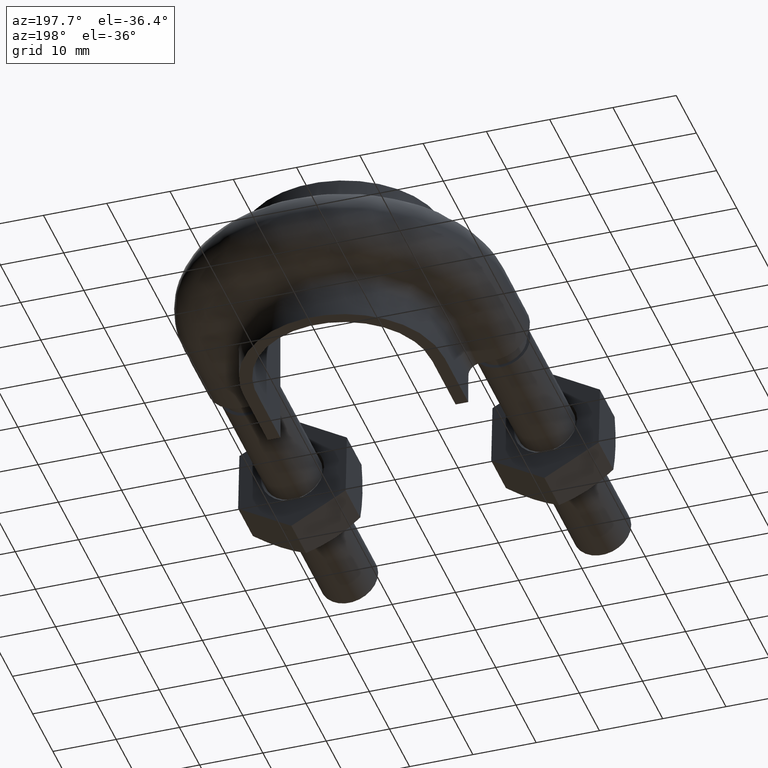
[diagram: clean part render]
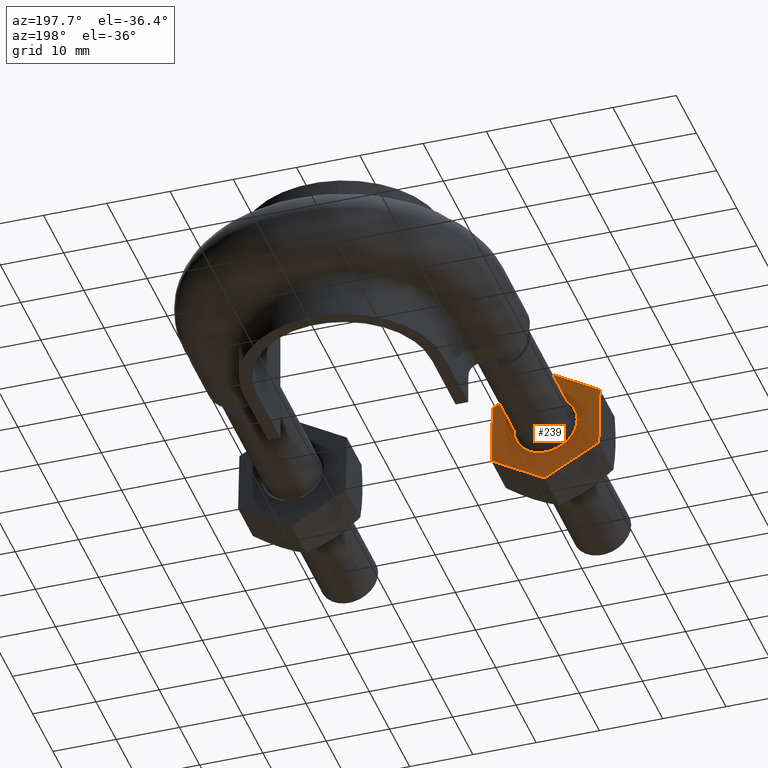
[diagram: same view with one face highlighted and labeled with its STEP entity id]
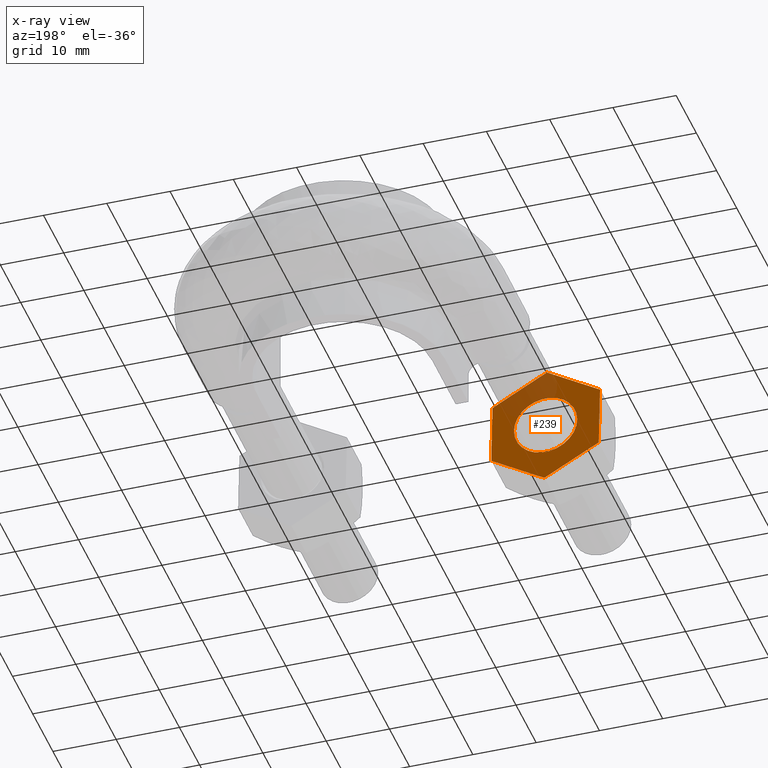
[diagram: x-ray of the same camera — body ghosted, the highlighted face saturated]
A machine part, auxiliary view. The second image highlights one B-rep face of the part: STEP entity #239.
The next image is the same camera in x-ray: the body ghosted, the highlighted face saturated — about 20% of this face is hidden behind the body in this view.
In plain terms, the highlighted planar face has unit normal (-0, -1, -0).
Its self-contained STEP definition (entity closure, byte-faithful):
#239 = ADVANCED_FACE( '', ( #329, #330 ), #331, .F. );
#329 = FACE_OUTER_BOUND( '', #1187, .T. );
#330 = FACE_BOUND( '', #1188, .T. );
#331 = PLANE( '', #1189 );
#1187 = EDGE_LOOP( '', ( #1423, #1424, #1425, #1426, #1427, #1428, #1429, #1430, #1431, #1432, #1433, #1434 ) );
#1188 = EDGE_LOOP( '', ( #1435 ) );
#1189 = AXIS2_PLACEMENT_3D( '', #1436, #1437, #1438 );
#1423 = ORIENTED_EDGE( '', *, *, #1771, .T. );
#1424 = ORIENTED_EDGE( '', *, *, #1772, .T. );
#1425 = ORIENTED_EDGE( '', *, *, #1773, .T. );
#1426 = ORIENTED_EDGE( '', *, *, #1774, .T. );
#1427 = ORIENTED_EDGE( '', *, *, #1775, .T. );
#1428 = ORIENTED_EDGE( '', *, *, #1765, .T. );
#1429 = ORIENTED_EDGE( '', *, *, #1761, .T. );
#1430 = ORIENTED_EDGE( '', *, *, #1776, .T. );
#1431 = ORIENTED_EDGE( '', *, *, #1777, .T. );
#1432 = ORIENTED_EDGE( '', *, *, #1778, .T. );
#1433 = ORIENTED_EDGE( '', *, *, #1779, .T. );
#1434 = ORIENTED_EDGE( '', *, *, #1780, .T. );
#1435 = ORIENTED_EDGE( '', *, *, #1769, .F. );
#1436 = CARTESIAN_POINT( '', ( -20.1994470847724, 28.0000000000024, 9.79797024186009 ) );
#1437 = DIRECTION( '', ( -4.89842541528951E-016, -1.00000000000000, -6.12303176911189E-017 ) );
#1438 = DIRECTION( '', ( -1.00000000000000, 4.89842541528951E-016, 6.03777548009827E-048 ) );
#1761 = EDGE_CURVE( '', #1908, #1906, #1909, .F. );
#1765 = EDGE_CURVE( '', #1915, #1908, #1916, .T. );
#1769 = EDGE_CURVE( '', #1921, #1921, #1922, .F. );
#1771 = EDGE_CURVE( '', #1925, #1926, #1927, .F. );
#1772 = EDGE_CURVE( '', #1926, #1928, #1929, .T. );
#1773 = EDGE_CURVE( '', #1928, #1930, #1931, .F. );
#1774 = EDGE_CURVE( '', #1930, #1932, #1933, .T. );
#1775 = EDGE_CURVE( '', #1932, #1915, #1934, .F. );
#1776 = EDGE_CURVE( '', #1906, #1935, #1936, .T. );
#1777 = EDGE_CURVE( '', #1935, #1937, #1938, .F. );
#1778 = EDGE_CURVE( '', #1937, #1939, #1940, .T. );
#1779 = EDGE_CURVE( '', #1939, #1941, #1942, .F. );
#1780 = EDGE_CURVE( '', #1941, #1925, #1943, .T. );
#1906 = VERTEX_POINT( '', #2294 );
#1908 = VERTEX_POINT( '', #2297 );
#1909 = CIRCLE( '', #2298, 9.80000000000000 );
#1915 = VERTEX_POINT( '', #2315 );
#1916 = LINE( '', #2316, #2317 );
#1921 = VERTEX_POINT( '', #2328 );
#1922 = CIRCLE( '', #2329, 5.00000000000000 );
#1925 = VERTEX_POINT( '', #2332 );
#1926 = VERTEX_POINT( '', #2333 );
#1927 = CIRCLE( '', #2334, 9.80000000000000 );
#1928 = VERTEX_POINT( '', #2335 );
#1929 = LINE( '', #2336, #2337 );
#1930 = VERTEX_POINT( '', #2338 );
#1931 = CIRCLE( '', #2339, 9.80000000000000 );
#1932 = VERTEX_POINT( '', #2340 );
#1933 = LINE( '', #2341, #2342 );
#1934 = CIRCLE( '', #2343, 9.80000000000000 );
#1935 = VERTEX_POINT( '', #2344 );
#1936 = LINE( '', #2345, #2346 );
#1937 = VERTEX_POINT( '', #2347 );
#1938 = CIRCLE( '', #2348, 9.80000000000000 );
#1939 = VERTEX_POINT( '', #2349 );
#1940 = LINE( '', #2350, #2351 );
#1941 = VERTEX_POINT( '', #2352 );
#1942 = CIRCLE( '', #2353, 9.80000000000000 );
#1943 = LINE( '', #2354, #2355 );
#2294 = CARTESIAN_POINT( '', ( -28.3989738803692, 28.0000000000024, -5.04947895894971 ) );
#2297 = CARTESIAN_POINT( '', ( -28.3721024549274, 28.0000000000024, -5.09390817390725 ) );
#2298 = AXIS2_PLACEMENT_3D( '', #2629, #2630, #2631 );
#2315 = CARTESIAN_POINT( '', ( -19.8265098858592, 28.0000000000024, -9.79846422559655 ) );
#2316 = CARTESIAN_POINT( '', ( -28.3918135090738, 28.0000000000024, -5.08305676034871 ) );
#2317 = VECTOR( '', #2633, 1000.00000000000 );
#2328 = CARTESIAN_POINT( '', ( -15.0000000000000, 28.0000000000024, 5.01541082970070E-015 ) );
#2329 = AXIS2_PLACEMENT_3D( '', #2638, #2639, #2640 );
#2332 = CARTESIAN_POINT( '', ( -11.6278975450726, 28.0000000000024, 5.09390817390726 ) );
#2333 = CARTESIAN_POINT( '', ( -11.6010261196308, 28.0000000000024, 5.04947895894972 ) );
#2334 = AXIS2_PLACEMENT_3D( '', #2644, #2645, #2646 );
#2335 = CARTESIAN_POINT( '', ( -11.4024948893875, 28.0000000000024, -4.70349932209962 ) );
#2336 = CARTESIAN_POINT( '', ( -11.7012075892815, 28.0000000000024, 9.97096006028513 ) );
#2337 = VECTOR( '', #2647, 1000.00000000000 );
#2338 = CARTESIAN_POINT( '', ( -11.4275360054900, 28.0000000000024, -4.74898526664692 ) );
#2339 = AXIS2_PLACEMENT_3D( '', #2648, #2649, #2650 );
#2340 = CARTESIAN_POINT( '', ( -19.7745973443148, 28.0000000000024, -9.79740749600679 ) );
#2341 = CARTESIAN_POINT( '', ( -11.4082828786081, 28.0000000000024, -4.73734069980000 ) );
#2342 = VECTOR( '', #2651, 1000.00000000000 );
#2343 = AXIS2_PLACEMENT_3D( '', #2652, #2653, #2654 );
#2344 = CARTESIAN_POINT( '', ( -28.5975051106125, 28.0000000000024, 4.70349932209962 ) );
#2345 = CARTESIAN_POINT( '', ( -28.6976865802633, 28.0000000000024, 9.62498042343504 ) );
#2346 = VECTOR( '', #2655, 1000.00000000000 );
#2347 = CARTESIAN_POINT( '', ( -28.5724639945100, 28.0000000000024, 4.74898526664693 ) );
#2348 = AXIS2_PLACEMENT_3D( '', #2656, #2657, #2658 );
#2349 = CARTESIAN_POINT( '', ( -20.2254026556852, 28.0000000000024, 9.79740749600680 ) );
#2350 = CARTESIAN_POINT( '', ( -20.2061495288033, 28.0000000000024, 9.80905206285371 ) );
#2351 = VECTOR( '', #2659, 1000.00000000000 );
#2352 = CARTESIAN_POINT( '', ( -20.1734901141408, 28.0000000000024, 9.79846422559656 ) );
#2353 = AXIS2_PLACEMENT_3D( '', #2660, #2661, #2662 );
#2354 = CARTESIAN_POINT( '', ( -20.1932011682872, 28.0000000000024, 9.80931563915510 ) );
#2355 = VECTOR( '', #2663, 1000.00000000000 );
#2629 = CARTESIAN_POINT( '', ( -20.0000000000000, 28.0000000000024, 5.01541082970070E-015 ) );
#2630 = DIRECTION( '', ( -4.89842541528951E-016, -1.00000000000000, -6.12303176911189E-017 ) );
#2631 = DIRECTION( '', ( 1.00000000000000, -4.89842541528951E-016, 0.000000000000000 ) );
#2633 = DIRECTION( '', ( -0.876021905853163, 3.99583171018579E-016, 0.482271314163917 ) );
#2638 = CARTESIAN_POINT( '', ( -20.0000000000000, 28.0000000000024, 5.01541082970070E-015 ) );
#2639 = DIRECTION( '', ( -4.89842541528951E-016, -1.00000000000000, -6.12303176911189E-017 ) );
#2640 = DIRECTION( '', ( 1.00000000000000, -4.89842541528951E-016, 0.000000000000000 ) );
#2644 = CARTESIAN_POINT( '', ( -20.0000000000000, 28.0000000000024, 5.01541082970070E-015 ) );
#2645 = DIRECTION( '', ( -4.89842541528951E-016, -1.00000000000000, -6.12303176911189E-017 ) );
#2646 = DIRECTION( '', ( 1.00000000000000, -4.89842541528951E-016, 0.000000000000000 ) );
#2647 = DIRECTION( '', ( 0.0203517433441231, 5.12484860950782E-017, -0.999792881822458 ) );
#2648 = CARTESIAN_POINT( '', ( -20.0000000000000, 28.0000000000024, 5.01541082970070E-015 ) );
#2649 = DIRECTION( '', ( -4.89842541528951E-016, -1.00000000000000, -6.12303176911189E-017 ) );
#2650 = DIRECTION( '', ( 1.00000000000000, -4.89842541528951E-016, 0.000000000000000 ) );
#2651 = DIRECTION( '', ( -0.855670162509040, 4.50831657113657E-016, -0.517521567658540 ) );
#2652 = CARTESIAN_POINT( '', ( -20.0000000000000, 28.0000000000024, 5.01541082970070E-015 ) );
#2653 = DIRECTION( '', ( -4.89842541528951E-016, -1.00000000000000, -6.12303176911189E-017 ) );
#2654 = DIRECTION( '', ( 1.00000000000000, -4.89842541528951E-016, 0.000000000000000 ) );
#2655 = DIRECTION( '', ( -0.0203517433441231, -5.12484860950782E-017, 0.999792881822458 ) );
#2656 = CARTESIAN_POINT( '', ( -20.0000000000000, 28.0000000000024, 5.01541082970070E-015 ) );
#2657 = DIRECTION( '', ( -4.89842541528951E-016, -1.00000000000000, -6.12303176911189E-017 ) );
#2658 = DIRECTION( '', ( 1.00000000000000, -4.89842541528951E-016, 0.000000000000000 ) );
#2659 = DIRECTION( '', ( 0.855670162509040, -4.50831657113657E-016, 0.517521567658540 ) );
#2660 = CARTESIAN_POINT( '', ( -20.0000000000000, 28.0000000000024, 5.01541082970070E-015 ) );
#2661 = DIRECTION( '', ( -4.89842541528951E-016, -1.00000000000000, -6.12303176911189E-017 ) );
#2662 = DIRECTION( '', ( 1.00000000000000, -4.89842541528951E-016, 0.000000000000000 ) );
#2663 = DIRECTION( '', ( 0.876021905853163, -3.99583171018579E-016, -0.482271314163917 ) );